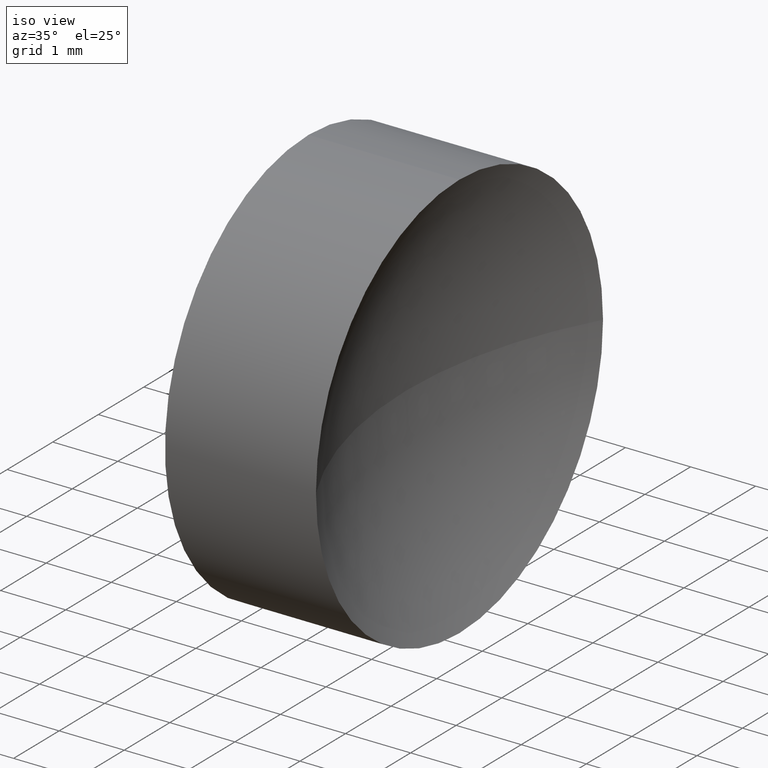
[diagram: clean part render]
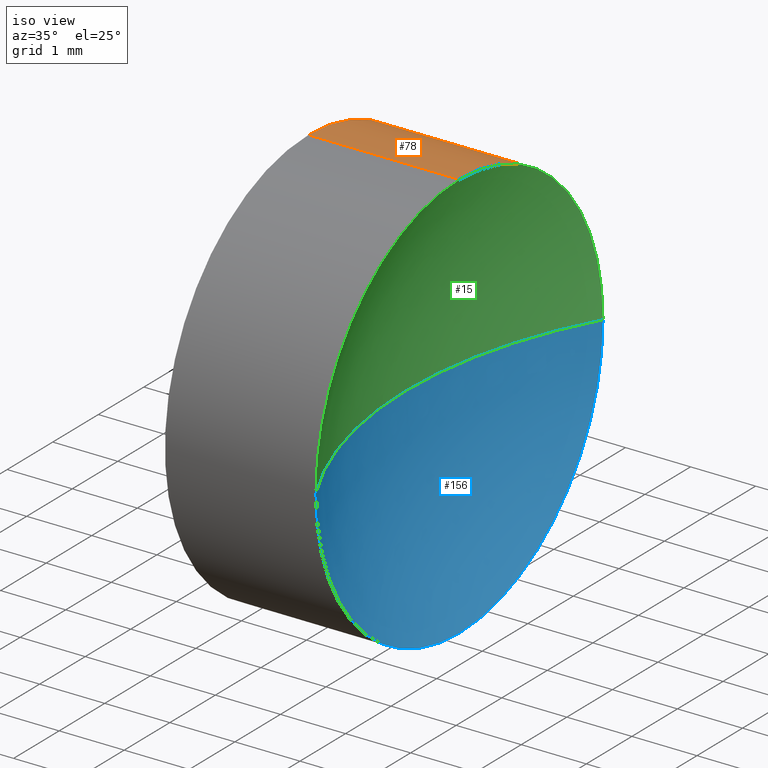
[diagram: same view with three faces highlighted in distinct colors, each labeled with its STEP entity id]
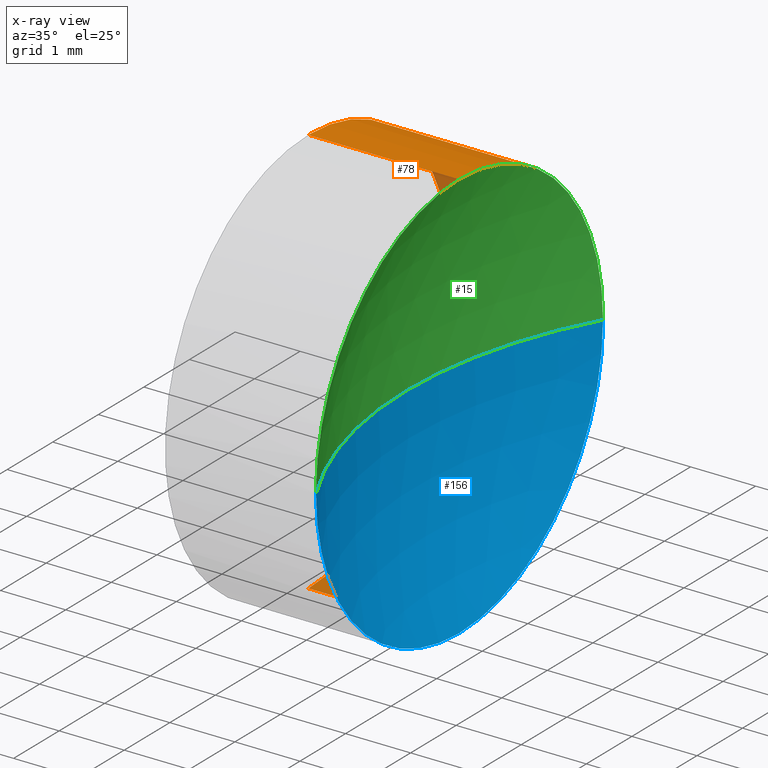
[diagram: x-ray of the same camera — body ghosted, the three highlighted faces saturated]
A machine part, iso view with three faces highlighted in distinct colors.
The next image is the same camera in x-ray (body ghosted, the three faces saturated) — at least one of them is partly hidden behind the body in this view.
Their STEP definitions:

[orange] entity #78 — the highlighted cylindrical surface (partial cylindrical patch) has radius 3.15 mm, axis along (-1, -0, -0).
#5 = AXIS2_PLACEMENT_3D ( 'NONE', #76, #167, #100 ) ;
#10 = DIRECTION ( 'NONE',  ( -1.000000000000000000, -0.0000000000000000000, -0.0000000000000000000 ) ) ;
#30 = VECTOR ( 'NONE', #184, 1000.000000000000000 ) ;
#38 = CARTESIAN_POINT ( 'NONE',  ( 22.30926883257449200, 13.03112609140304000, -3.149999999999998100 ) ) ;
#40 = CARTESIAN_POINT ( 'NONE',  ( 24.62931315898982000, 13.03112609140304000, -3.149999999999998100 ) ) ;
#41 = DIRECTION ( 'NONE',  ( -1.000000000000000000, -0.0000000000000000000, -0.0000000000000000000 ) ) ;
#43 = ORIENTED_EDGE ( 'NONE', *, *, #85, .T. ) ;
#47 = AXIS2_PLACEMENT_3D ( 'NONE', #163, #75, #116 ) ;
#48 = ORIENTED_EDGE ( 'NONE', *, *, #141, .F. ) ;
#49 = AXIS2_PLACEMENT_3D ( 'NONE', #128, #57, #102 ) ;
#52 = CARTESIAN_POINT ( 'NONE',  ( 22.30926883257449200, 13.03112609140304000, 3.149999999999998100 ) ) ;
#53 = EDGE_CURVE ( 'NONE', #99, #80, #71, .T. ) ;
#54 = DIRECTION ( 'NONE',  ( 0.0000000000000000000, 0.0000000000000000000, 1.000000000000000000 ) ) ;
#55 = CARTESIAN_POINT ( 'NONE',  ( 24.62931315898982000, 16.18112609140303700, 3.857637417314161200E-016 ) ) ;
#57 = DIRECTION ( 'NONE',  ( -1.000000000000000000, -0.0000000000000000000, -0.0000000000000000000 ) ) ;
#60 = CIRCLE ( 'NONE', #49, 3.149999999999998100 ) ;
#61 = FACE_OUTER_BOUND ( 'NONE', #93, .T. ) ;
#64 = EDGE_CURVE ( 'NONE', #80, #172, #181, .T. ) ;
#71 = CIRCLE ( 'NONE', #47, 3.149999999999998100 ) ;
#75 = DIRECTION ( 'NONE',  ( -1.000000000000000000, -0.0000000000000000000, -0.0000000000000000000 ) ) ;
#76 = CARTESIAN_POINT ( 'NONE',  ( 24.62931315898982000, 13.03112609140304000, 0.0000000000000000000 ) ) ;
#78 = ADVANCED_FACE ( 'NONE', ( #61 ), #103, .T. ) ;
#80 = VERTEX_POINT ( 'NONE', #40 ) ;
#81 = EDGE_CURVE ( 'NONE', #146, #180, #109, .T. ) ;
#83 = ORIENTED_EDGE ( 'NONE', *, *, #81, .F. ) ;
#85 = EDGE_CURVE ( 'NONE', #146, #99, #135, .T. ) ;
#86 = CARTESIAN_POINT ( 'NONE',  ( 20.68403063513288800, 13.03112609140304000, 0.0000000000000000000 ) ) ;
#87 = CARTESIAN_POINT ( 'NONE',  ( 20.68403063513288800, 13.03112609140304000, -3.149999999999998100 ) ) ;
#93 = EDGE_LOOP ( 'NONE', ( #142, #104, #48, #83, #43 ) ) ;
#99 = VERTEX_POINT ( 'NONE', #55 ) ;
#100 = DIRECTION ( 'NONE',  ( 0.0000000000000000000, 0.0000000000000000000, 1.000000000000000000 ) ) ;
#102 = DIRECTION ( 'NONE',  ( 0.0000000000000000000, 0.0000000000000000000, 1.000000000000000000 ) ) ;
#103 = CYLINDRICAL_SURFACE ( 'NONE', #124, 3.149999999999998100 ) ;
#104 = ORIENTED_EDGE ( 'NONE', *, *, #64, .T. ) ;
#109 = LINE ( 'NONE', #131, #30 ) ;
#110 = VECTOR ( 'NONE', #10, 1000.000000000000000 ) ;
#116 = DIRECTION ( 'NONE',  ( 0.0000000000000000000, 0.0000000000000000000, 1.000000000000000000 ) ) ;
#124 = AXIS2_PLACEMENT_3D ( 'NONE', #86, #41, #54 ) ;
#128 = CARTESIAN_POINT ( 'NONE',  ( 22.30926883257449200, 13.03112609140304000, 0.0000000000000000000 ) ) ;
#131 = CARTESIAN_POINT ( 'NONE',  ( 20.68403063513288800, 13.03112609140304000, 3.149999999999998100 ) ) ;
#135 = CIRCLE ( 'NONE', #5, 3.149999999999998100 ) ;
#141 = EDGE_CURVE ( 'NONE', #180, #172, #60, .T. ) ;
#142 = ORIENTED_EDGE ( 'NONE', *, *, #53, .T. ) ;
#146 = VERTEX_POINT ( 'NONE', #161 ) ;
#161 = CARTESIAN_POINT ( 'NONE',  ( 24.62931315898982000, 13.03112609140304000, 3.149999999999998100 ) ) ;
#163 = CARTESIAN_POINT ( 'NONE',  ( 24.62931315898982000, 13.03112609140304000, 0.0000000000000000000 ) ) ;
#167 = DIRECTION ( 'NONE',  ( -1.000000000000000000, -0.0000000000000000000, -0.0000000000000000000 ) ) ;
#172 = VERTEX_POINT ( 'NONE', #38 ) ;
#180 = VERTEX_POINT ( 'NONE', #52 ) ;
#181 = LINE ( 'NONE', #87, #110 ) ;
#184 = DIRECTION ( 'NONE',  ( -1.000000000000000000, -0.0000000000000000000, -0.0000000000000000000 ) ) ;

[blue] entity #156 — the highlighted spherical surface has radius 6.46 mm.
#1 = EDGE_LOOP ( 'NONE', ( #6, #35, #50, #148 ) ) ;
#6 = ORIENTED_EDGE ( 'NONE', *, *, #53, .F. ) ;
#7 = DIRECTION ( 'NONE',  ( -1.000000000000000000, 0.0000000000000000000, 0.0000000000000000000 ) ) ;
#9 = VERTEX_POINT ( 'NONE', #150 ) ;
#12 = CARTESIAN_POINT ( 'NONE',  ( 30.26926883257449300, 13.03112609140304000, 0.0000000000000000000 ) ) ;
#18 = CARTESIAN_POINT ( 'NONE',  ( 30.26926883257449300, 13.03112609140304000, 0.0000000000000000000 ) ) ;
#22 = CARTESIAN_POINT ( 'NONE',  ( 24.62931315898982000, 13.03112609140304000, 0.0000000000000000000 ) ) ;
#29 = CARTESIAN_POINT ( 'NONE',  ( 30.26926883257449300, 13.03112609140304000, 0.0000000000000000000 ) ) ;
#35 = ORIENTED_EDGE ( 'NONE', *, *, #46, .T. ) ;
#40 = CARTESIAN_POINT ( 'NONE',  ( 24.62931315898982000, 13.03112609140304000, -3.149999999999998100 ) ) ;
#45 = SPHERICAL_SURFACE ( 'NONE', #92, 6.459999999999995500 ) ;
#46 = EDGE_CURVE ( 'NONE', #99, #9, #175, .T. ) ;
#47 = AXIS2_PLACEMENT_3D ( 'NONE', #163, #75, #116 ) ;
#50 = ORIENTED_EDGE ( 'NONE', *, *, #170, .F. ) ;
#53 = EDGE_CURVE ( 'NONE', #99, #80, #71, .T. ) ;
#55 = CARTESIAN_POINT ( 'NONE',  ( 24.62931315898982000, 16.18112609140303700, 3.857637417314161200E-016 ) ) ;
#58 = CIRCLE ( 'NONE', #98, 6.459999999999997300 ) ;
#71 = CIRCLE ( 'NONE', #47, 3.149999999999998100 ) ;
#75 = DIRECTION ( 'NONE',  ( -1.000000000000000000, -0.0000000000000000000, -0.0000000000000000000 ) ) ;
#80 = VERTEX_POINT ( 'NONE', #40 ) ;
#82 = AXIS2_PLACEMENT_3D ( 'NONE', #22, #151, #160 ) ;
#92 = AXIS2_PLACEMENT_3D ( 'NONE', #18, #127, #152 ) ;
#95 = FACE_OUTER_BOUND ( 'NONE', #1, .T. ) ;
#98 = AXIS2_PLACEMENT_3D ( 'NONE', #12, #139, #7 ) ;
#99 = VERTEX_POINT ( 'NONE', #55 ) ;
#113 = EDGE_CURVE ( 'NONE', #80, #178, #173, .T. ) ;
#116 = DIRECTION ( 'NONE',  ( 0.0000000000000000000, 0.0000000000000000000, 1.000000000000000000 ) ) ;
#127 = DIRECTION ( 'NONE',  ( 0.0000000000000000000, 0.0000000000000000000, 1.000000000000000000 ) ) ;
#129 = DIRECTION ( 'NONE',  ( 0.0000000000000000000, -1.224646799147353200E-016, 1.000000000000000000 ) ) ;
#139 = DIRECTION ( 'NONE',  ( 0.0000000000000000000, 0.0000000000000000000, -1.000000000000000000 ) ) ;
#148 = ORIENTED_EDGE ( 'NONE', *, *, #113, .F. ) ;
#150 = CARTESIAN_POINT ( 'NONE',  ( 23.80926883257449600, 13.03112609140304000, 0.0000000000000000000 ) ) ;
#151 = DIRECTION ( 'NONE',  ( -1.000000000000000000, -0.0000000000000000000, -0.0000000000000000000 ) ) ;
#152 = DIRECTION ( 'NONE',  ( 0.0000000000000000000, -1.000000000000000000, 0.0000000000000000000 ) ) ;
#155 = CARTESIAN_POINT ( 'NONE',  ( 24.62931315898982000, 9.881126091403041700, 0.0000000000000000000 ) ) ;
#156 = ADVANCED_FACE ( 'NONE', ( #95 ), #45, .F. ) ;
#160 = DIRECTION ( 'NONE',  ( 0.0000000000000000000, 0.0000000000000000000, 1.000000000000000000 ) ) ;
#163 = CARTESIAN_POINT ( 'NONE',  ( 24.62931315898982000, 13.03112609140304000, 0.0000000000000000000 ) ) ;
#170 = EDGE_CURVE ( 'NONE', #178, #9, #58, .T. ) ;
#173 = CIRCLE ( 'NONE', #82, 3.149999999999998100 ) ;
#175 = CIRCLE ( 'NONE', #183, 6.459999999999995500 ) ;
#178 = VERTEX_POINT ( 'NONE', #155 ) ;
#182 = DIRECTION ( 'NONE',  ( 0.0000000000000000000, -1.000000000000000000, -1.224646799147353200E-016 ) ) ;
#183 = AXIS2_PLACEMENT_3D ( 'NONE', #29, #129, #182 ) ;

[green] entity #15 — the highlighted spherical surface has radius 6.46 mm.
#5 = AXIS2_PLACEMENT_3D ( 'NONE', #76, #167, #100 ) ;
#7 = DIRECTION ( 'NONE',  ( -1.000000000000000000, 0.0000000000000000000, 0.0000000000000000000 ) ) ;
#9 = VERTEX_POINT ( 'NONE', #150 ) ;
#11 = DIRECTION ( 'NONE',  ( 0.0000000000000000000, 0.0000000000000000000, 1.000000000000000000 ) ) ;
#12 = CARTESIAN_POINT ( 'NONE',  ( 30.26926883257449300, 13.03112609140304000, 0.0000000000000000000 ) ) ;
#15 = ADVANCED_FACE ( 'NONE', ( #63 ), #32, .F. ) ;
#19 = CIRCLE ( 'NONE', #72, 3.149999999999998100 ) ;
#21 = ORIENTED_EDGE ( 'NONE', *, *, #170, .T. ) ;
#29 = CARTESIAN_POINT ( 'NONE',  ( 30.26926883257449300, 13.03112609140304000, 0.0000000000000000000 ) ) ;
#31 = ORIENTED_EDGE ( 'NONE', *, *, #106, .F. ) ;
#32 = SPHERICAL_SURFACE ( 'NONE', #34, 6.459999999999995500 ) ;
#34 = AXIS2_PLACEMENT_3D ( 'NONE', #94, #66, #176 ) ;
#46 = EDGE_CURVE ( 'NONE', #99, #9, #175, .T. ) ;
#55 = CARTESIAN_POINT ( 'NONE',  ( 24.62931315898982000, 16.18112609140303700, 3.857637417314161200E-016 ) ) ;
#58 = CIRCLE ( 'NONE', #98, 6.459999999999997300 ) ;
#63 = FACE_OUTER_BOUND ( 'NONE', #118, .T. ) ;
#66 = DIRECTION ( 'NONE',  ( 0.0000000000000000000, 0.0000000000000000000, 1.000000000000000000 ) ) ;
#72 = AXIS2_PLACEMENT_3D ( 'NONE', #185, #101, #11 ) ;
#76 = CARTESIAN_POINT ( 'NONE',  ( 24.62931315898982000, 13.03112609140304000, 0.0000000000000000000 ) ) ;
#85 = EDGE_CURVE ( 'NONE', #146, #99, #135, .T. ) ;
#94 = CARTESIAN_POINT ( 'NONE',  ( 30.26926883257449300, 13.03112609140304000, 0.0000000000000000000 ) ) ;
#98 = AXIS2_PLACEMENT_3D ( 'NONE', #12, #139, #7 ) ;
#99 = VERTEX_POINT ( 'NONE', #55 ) ;
#100 = DIRECTION ( 'NONE',  ( 0.0000000000000000000, 0.0000000000000000000, 1.000000000000000000 ) ) ;
#101 = DIRECTION ( 'NONE',  ( -1.000000000000000000, -0.0000000000000000000, -0.0000000000000000000 ) ) ;
#106 = EDGE_CURVE ( 'NONE', #178, #146, #19, .T. ) ;
#118 = EDGE_LOOP ( 'NONE', ( #136, #154, #31, #21 ) ) ;
#129 = DIRECTION ( 'NONE',  ( 0.0000000000000000000, -1.224646799147353200E-016, 1.000000000000000000 ) ) ;
#135 = CIRCLE ( 'NONE', #5, 3.149999999999998100 ) ;
#136 = ORIENTED_EDGE ( 'NONE', *, *, #46, .F. ) ;
#139 = DIRECTION ( 'NONE',  ( 0.0000000000000000000, 0.0000000000000000000, -1.000000000000000000 ) ) ;
#146 = VERTEX_POINT ( 'NONE', #161 ) ;
#150 = CARTESIAN_POINT ( 'NONE',  ( 23.80926883257449600, 13.03112609140304000, 0.0000000000000000000 ) ) ;
#154 = ORIENTED_EDGE ( 'NONE', *, *, #85, .F. ) ;
#155 = CARTESIAN_POINT ( 'NONE',  ( 24.62931315898982000, 9.881126091403041700, 0.0000000000000000000 ) ) ;
#161 = CARTESIAN_POINT ( 'NONE',  ( 24.62931315898982000, 13.03112609140304000, 3.149999999999998100 ) ) ;
#167 = DIRECTION ( 'NONE',  ( -1.000000000000000000, -0.0000000000000000000, -0.0000000000000000000 ) ) ;
#170 = EDGE_CURVE ( 'NONE', #178, #9, #58, .T. ) ;
#175 = CIRCLE ( 'NONE', #183, 6.459999999999995500 ) ;
#176 = DIRECTION ( 'NONE',  ( 0.0000000000000000000, -1.000000000000000000, 0.0000000000000000000 ) ) ;
#178 = VERTEX_POINT ( 'NONE', #155 ) ;
#182 = DIRECTION ( 'NONE',  ( 0.0000000000000000000, -1.000000000000000000, -1.224646799147353200E-016 ) ) ;
#183 = AXIS2_PLACEMENT_3D ( 'NONE', #29, #129, #182 ) ;
#185 = CARTESIAN_POINT ( 'NONE',  ( 24.62931315898982000, 13.03112609140304000, 0.0000000000000000000 ) ) ;